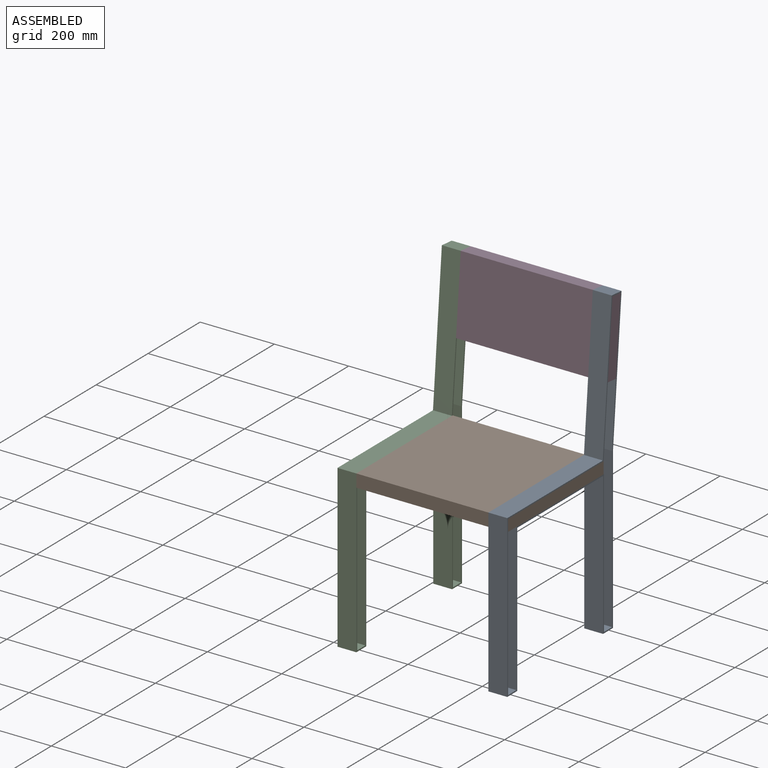
[diagram: assembled view]
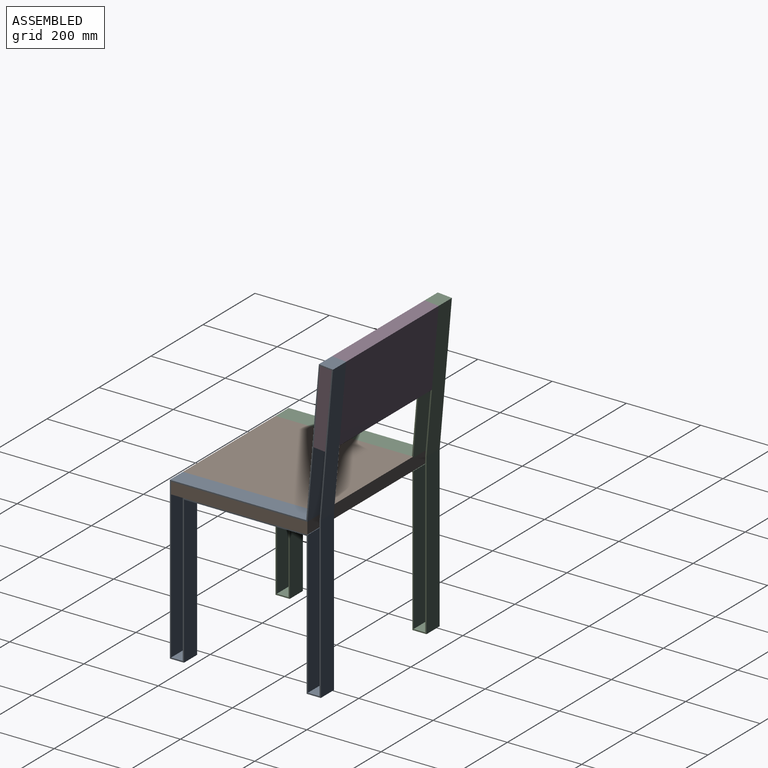
[diagram: assembled view, second angle]
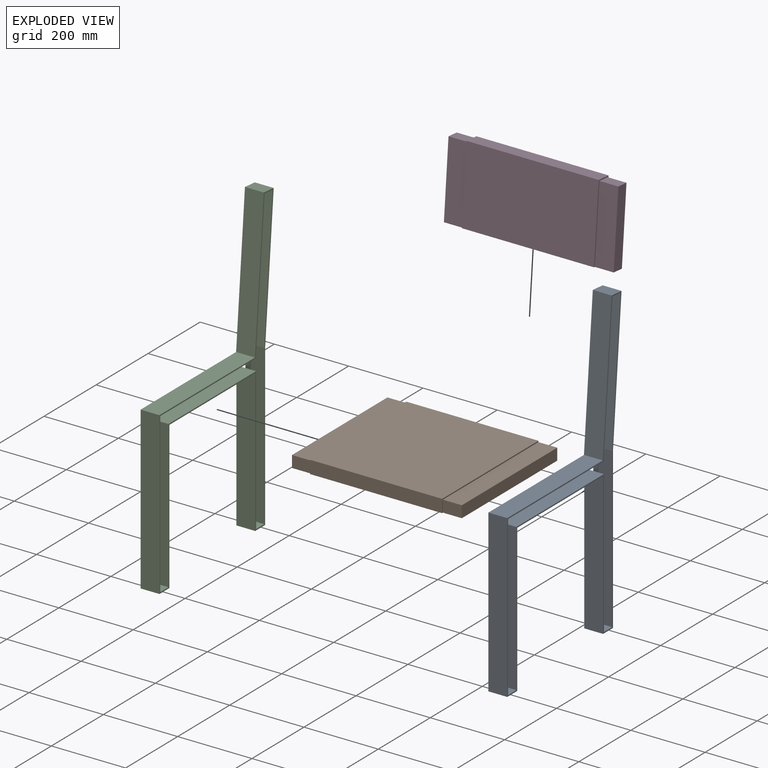
[diagram: exploded view]
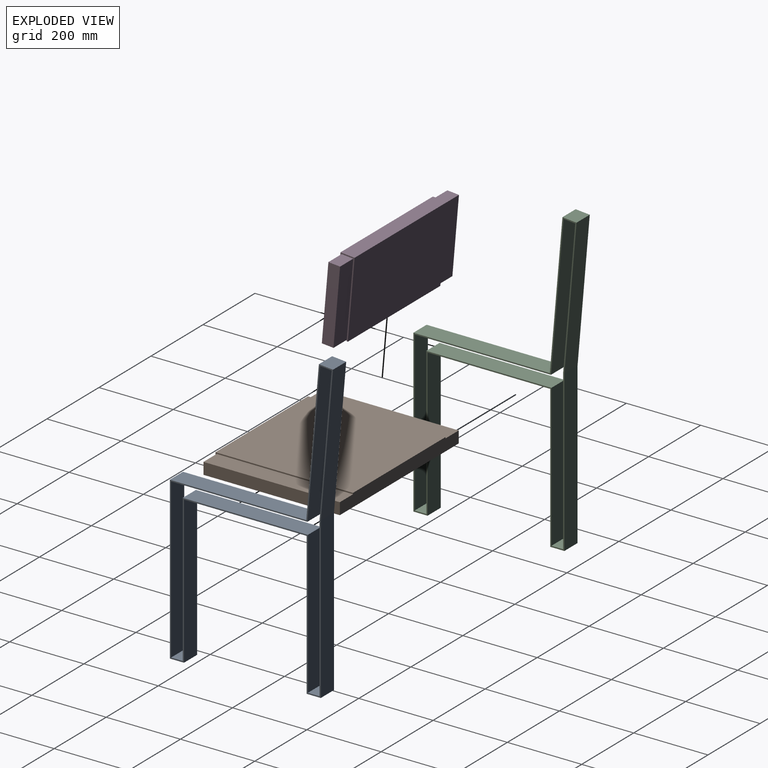
[diagram: exploded view, second angle]
ASSEMBLY  parts=4 mates=3
PART A: 24 faces, bbox 50.8x439.3x823.6 mm
  f0: plane 388.27x50.8mm, normal (0,1,-0.09), area 19799.3mm2, adj f1,f21,f22,f23
  f1: plane 50.8x31.39mm, normal (0,-0.09,-1), area 1600.6mm2, adj f0,f2,f22,f23
  f2: plane 372.72x50.8mm, normal (0,-1,0.09), area 19006.7mm2, adj f1,f3,f22,f23
  f3: plane 428.59x50.8mm, normal (0,-1,0), area 21772.5mm2, adj f2,f4,f22,f23
  f4: plane 50.8x31.5mm, normal (0,0,1), area 1600mm2, adj f3,f5,f22,f23
  f5: plane 384.3x50.8mm, normal (0,1,0), area 19522.4mm2, adj f4,f6,f22,f23
  f6: plane 336.8x50.8mm, normal (0,0,1), area 17109.6mm2, adj f5,f7,f22,f23
  f7: plane 397x50.8mm, normal (0,-1,0), area 20167.7mm2, adj f6,f8,f22,f23
  f8: plane 50.8x31.5mm, normal (0,0,1), area 1600mm2, adj f7,f9,f22,f23
  f9: plane 428.5x50.8mm, normal (0,1,0), area 21767.7mm2, adj f8,f21,f22,f23
  f10: plane 435.1x50.8mm, normal (0,-1,0), area 22103.2mm2, adj f11,f20,f22,f23
  f11: plane 50.8x38.1mm, normal (0,0,-1), area 1935.5mm2, adj f10,f12,f22,f23
  f12: plane 397x50.8mm, normal (0,1,0), area 20167.7mm2, adj f11,f13,f22,f23
  f13: plane 330.2x50.8mm, normal (0,0,-1), area 16774.2mm2, adj f12,f14,f22,f23
  f14: plane 384.3x50.8mm, normal (0,-1,0), area 19522.4mm2, adj f13,f15,f22,f23
  f15: plane 50.8x38.1mm, normal (0,0,-1), area 1935.5mm2, adj f14,f16,f22,f23
  f16: plane 431.89x50.8mm, normal (0,1,0), area 21940.2mm2, adj f15,f17,f22,f23
  f17: plane 375.73x50.8mm, normal (0,1,-0.09), area 19159.8mm2, adj f16,f18,f22,f23
  f18: plane 50.8x37.96mm, normal (0,0.09,1), area 1935.5mm2, adj f17,f19,f22,f23
  f19: plane 388.54x50.8mm, normal (0,-1,0.09), area 19813.3mm2, adj f18,f20,f22,f23
  f20: plane 367.32x50.8mm, normal (0,0,1), area 18660mm2, adj f10,f19,f22,f23
  f21: plane 367.05x50.8mm, normal (0,0,-1), area 18646mm2, adj f0,f9,f22,f23
  f22: plane 823.64x439.27mm, normal (1,0,0), area 10607.8mm2, adj f0,f1,f2,f3,f4,f5,f6,f7
  f23: plane 823.64x439.27mm, normal (-1,0,0), area 10607.8mm2, adj f0,f1,f2,f3,f4,f5,f6,f7
PART B: 12 faces, bbox 457.2x370.3x34.8 mm
  f0: plane 50.8x31.5mm, normal (0,-1,0), area 1600mm2, adj f1,f2,f7,f8
  f1: plane 367.05x50.8mm, normal (0,0,1), area 18646mm2, adj f0,f3,f7,f8
  f2: plane 457.2x370.35mm, normal (0,0,-1), area 168988.4mm2, adj f0,f3,f5,f6,f7,f8,f9,f11
  f3: plane 457.2x34.8mm, normal (0,1,0), area 15574.2mm2, adj f1,f2,f4,f6,f7,f8,f9,f10
  f4: plane 367.05x50.8mm, normal (0,0,1), area 18646mm2, adj f3,f5,f6,f9
  f5: plane 50.8x31.5mm, normal (0,-1,0), area 1600mm2, adj f2,f4,f6,f9
  f6: plane 367.05x31.5mm, normal (1,0,0), area 11560.5mm2, adj f2,f3,f4,f5
  f7: plane 367.05x31.5mm, normal (-1,0,0), area 11560.5mm2, adj f0,f1,f2,f3
  f8: plane 370.35x34.8mm, normal (-1,0,0), area 1326.9mm2, adj f0,f1,f2,f3,f10,f11
  f9: plane 370.35x34.8mm, normal (1,0,0), area 1326.9mm2, adj f2,f3,f4,f5,f10,f11
  f10: plane 370.35x355.6mm, normal (0,0,1), area 131696.4mm2, adj f3,f8,f9,f11
  f11: plane 355.6x34.8mm, normal (0,-1,0), area 12374.2mm2, adj f2,f8,f9,f10
PART C: same geometry as A
PART D: 16 faces, bbox 457.2x38.1x209.8 mm
  f0: plane 203.2x50.8mm, normal (0,1,0), area 10322.6mm2, adj f3,f5,f8,f9
  f1: plane 50.8x31.5mm, normal (0,0,1), area 1600mm2, adj f4,f6,f7,f10
  f2: plane 203.2x50.8mm, normal (0,-1,0), area 10322.6mm2, adj f3,f5,f8,f9
  f3: plane 457.2x34.8mm, normal (0,0,-1), area 15574.2mm2, adj f0,f2,f4,f6,f7,f8,f9,f10
  f4: plane 203.2x50.8mm, normal (0,1,0), area 10322.6mm2, adj f1,f3,f7,f10
  f5: plane 50.8x31.5mm, normal (0,0,1), area 1600mm2, adj f0,f2,f8,f9
  f6: plane 203.2x50.8mm, normal (0,-1,0), area 10322.6mm2, adj f1,f3,f7,f10
  f7: plane 203.2x31.5mm, normal (1,0,0), area 6400mm2, adj f1,f3,f4,f6
  f8: plane 203.2x31.5mm, normal (-1,0,0), area 6400mm2, adj f0,f2,f3,f5
  f9: plane 209.8x38.1mm, normal (-1,0,0), area 1478.6mm2, adj f0,f2,f3,f5,f11,f12,f13,f14
  f10: plane 209.8x38.1mm, normal (1,0,0), area 1478.6mm2, adj f1,f3,f4,f6,f11,f12,f13,f14
  f11: plane 355.6x206.5mm, normal (0,-1,0), area 73432.1mm2, adj f3,f9,f10,f12
  f12: plane 355.6x38.1mm, normal (0,0,1), area 13548.4mm2, adj f9,f10,f11,f15
  f13: plane 355.6x3.3mm, normal (0,-1,0), area 1174.2mm2, adj f3,f9,f10,f14
  f14: plane 355.6x3.3mm, normal (0,0,-1), area 1174.2mm2, adj f9,f10,f13,f15
  f15: plane 355.6x209.8mm, normal (0,1,0), area 74606.3mm2, adj f9,f10,f12,f14
PLACE A t=(-354.52,-49.02,100.57)mm fixed
PLACE B t=(-760.92,145.55,503.92)mm
PLACE C t=(-760.92,-49.02,100.57)mm
PLACE D rot(axis=(-1,0,0),5deg) t=(-760.92,369.87,805.35)mm
MATE fastened B.f7 <-> C.f23  axis (-1,0,0) through (-760.92,-37.98,519.67)mm
MATE fastened B.f6 <-> A.f22  axis (1,0,0) through (-303.72,-37.98,519.67)mm
MATE fastened D.f1 <-> A.f1  axis (0,-0.09,-1) through (-303.72,363.04,907.93)mm
